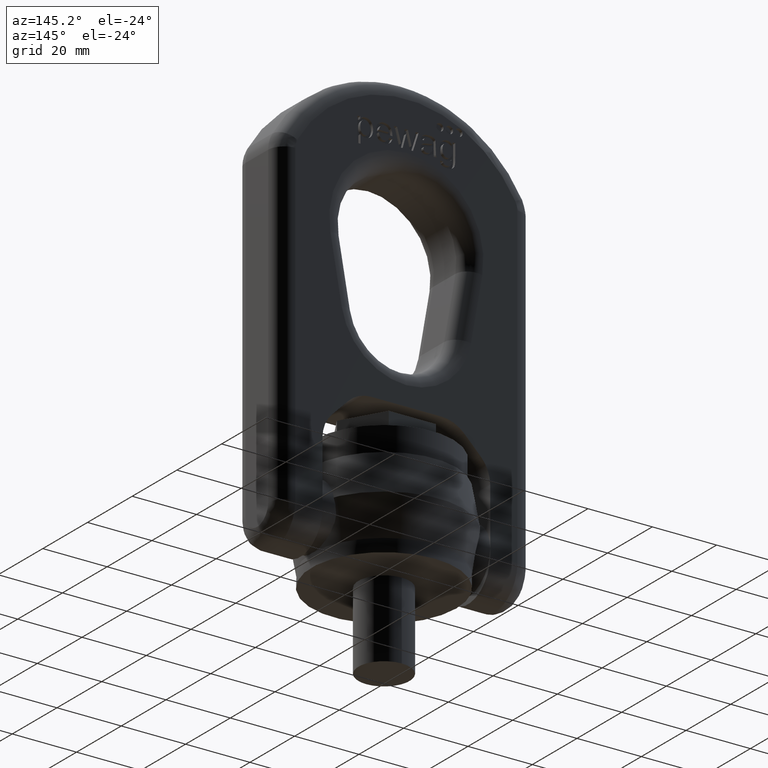
[diagram: clean part render]
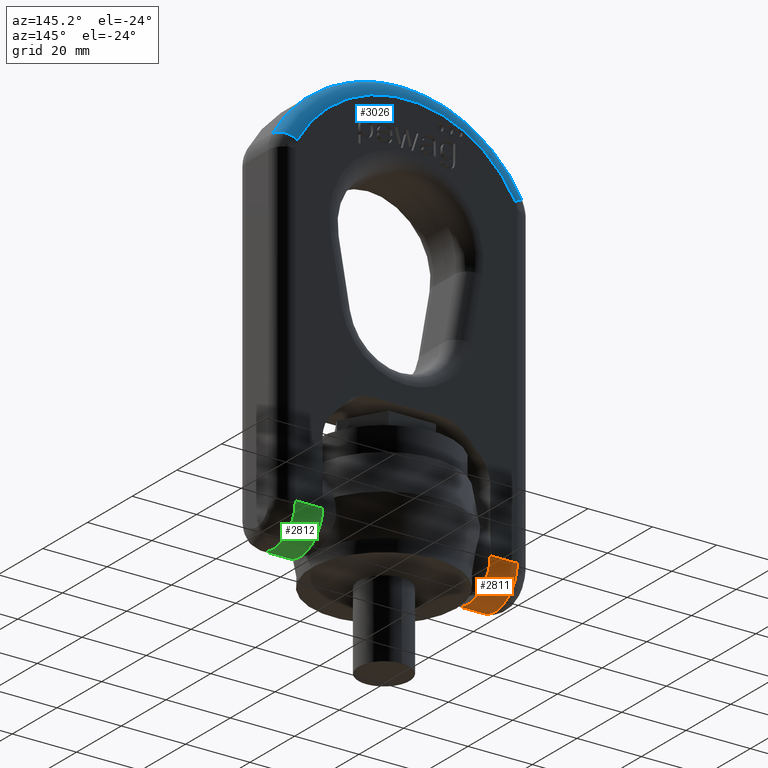
[diagram: same view with three faces highlighted in distinct colors, each labeled with its STEP entity id]
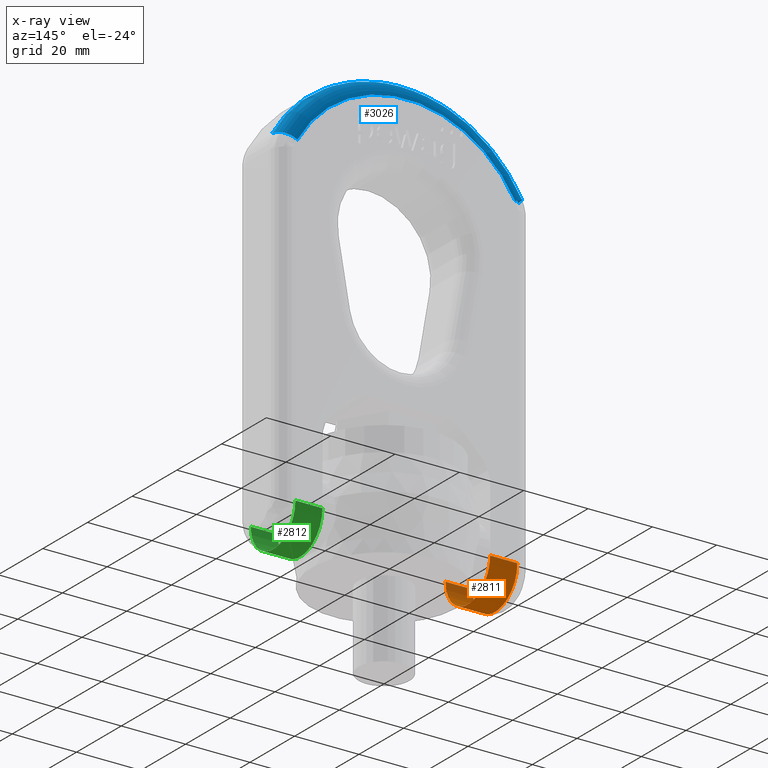
[diagram: x-ray of the same camera — body ghosted, the three highlighted faces saturated]
A machine part, auxiliary view with three faces highlighted in distinct colors.
The next image is the same camera in x-ray (body ghosted, the three faces saturated) — at least one of them is partly hidden behind the body in this view.
Their STEP definitions:

[orange] entity #2811 — the highlighted cylindrical surface (partial cylindrical patch) has radius 10 mm, axis along (-1, 0, 0).
#1770=LINE('',#7054,#2078);
#1771=LINE('',#7059,#2079);
#2078=VECTOR('',#6179,1.);
#2079=VECTOR('',#6182,1.);
#2453=FACE_OUTER_BOUND('',#3171,.T.);
#2811=ADVANCED_FACE('',(#2453),#3043,.T.);
#3043=CYLINDRICAL_SURFACE('',#5866,9.99999999999995);
#3171=EDGE_LOOP('',(#3529,#3530,#3531,#3532));
#3529=ORIENTED_EDGE('',*,*,#5169,.F.);
#3530=ORIENTED_EDGE('',*,*,#5170,.T.);
#3531=ORIENTED_EDGE('',*,*,#5171,.F.);
#3532=ORIENTED_EDGE('',*,*,#5172,.T.);
#4737=VERTEX_POINT('',#7055);
#4738=VERTEX_POINT('',#7056);
#4739=VERTEX_POINT('',#7058);
#4740=VERTEX_POINT('',#7060);
#5169=EDGE_CURVE('',#4737,#4738,#1770,.T.);
#5170=EDGE_CURVE('',#4737,#4739,#5760,.T.);
#5171=EDGE_CURVE('',#4740,#4739,#1771,.T.);
#5172=EDGE_CURVE('',#4740,#4738,#5761,.T.);
#5760=CIRCLE('',#5864,9.99999999999995);
#5761=CIRCLE('',#5865,9.99999999999995);
#5864=AXIS2_PLACEMENT_3D('',#7057,#6180,#6181);
#5865=AXIS2_PLACEMENT_3D('',#7061,#6183,#6184);
#5866=AXIS2_PLACEMENT_3D('',#7062,#6185,#6186);
#6179=DIRECTION('',(1.,0.,-1.14184330064296E-15));
#6180=DIRECTION('',(1.,0.,-1.87537673078574E-16));
#6181=DIRECTION('',(0.,0.,-1.));
#6182=DIRECTION('',(-1.,2.34291072916505E-15,1.14184330064296E-15));
#6183=DIRECTION('',(-1.,0.,3.85494105772624E-16));
#6184=DIRECTION('',(-3.46944695195363E-16,0.,-1.));
#6185=DIRECTION('',(-1.,1.17478108816151E-15,1.14184330064296E-15));
#6186=DIRECTION('',(-1.38777878078145E-15,-1.,0.));
#7054=CARTESIAN_POINT('',(39.5,-10.,12.));
#7055=CARTESIAN_POINT('',(-34.5,-10.,12.));
#7056=CARTESIAN_POINT('',(-26.07,-9.99999999999992,12.));
#7057=CARTESIAN_POINT('',(-34.5,4.00962666725779E-14,12.));
#7058=CARTESIAN_POINT('',(-34.5,10.0000000000001,12.));
#7059=CARTESIAN_POINT('',(39.5,9.99999999999991,12.));
#7060=CARTESIAN_POINT('',(-26.07,10.0000000000001,12.));
#7061=CARTESIAN_POINT('',(-26.07,3.01928620993763E-14,12.));
#7062=CARTESIAN_POINT('',(39.5,-4.68375338513738E-14,12.));

[blue] entity #3026 — the highlighted toroidal blend (fillet) surface has major radius 38.705 mm and minor (blend) radius 5 mm.
#202=TOROIDAL_SURFACE('',#6041,38.705,5.);
#2651=FACE_OUTER_BOUND('',#3419,.T.);
#3026=ADVANCED_FACE('',(#2651),#202,.T.);
#3419=EDGE_LOOP('',(#4641,#4642,#4643,#4644));
#4641=ORIENTED_EDGE('',*,*,#5734,.T.);
#4642=ORIENTED_EDGE('',*,*,#5369,.F.);
#4643=ORIENTED_EDGE('',*,*,#5736,.F.);
#4644=ORIENTED_EDGE('',*,*,#5280,.F.);
#4831=VERTEX_POINT('',#7404);
#4841=VERTEX_POINT('',#7426);
#4928=VERTEX_POINT('',#7762);
#4929=VERTEX_POINT('',#7764);
#5280=EDGE_CURVE('',#4841,#4831,#5783,.T.);
#5369=EDGE_CURVE('',#4928,#4929,#5791,.T.);
#5734=EDGE_CURVE('',#4841,#4929,#5812,.T.);
#5736=EDGE_CURVE('',#4831,#4928,#5814,.T.);
#5783=CIRCLE('',#5890,38.705);
#5791=CIRCLE('',#5904,43.705);
#5812=CIRCLE('',#6037,5.);
#5814=CIRCLE('',#6040,5.);
#5890=AXIS2_PLACEMENT_3D('',#7427,#6285,#6286);
#5904=AXIS2_PLACEMENT_3D('',#7763,#6360,#6361);
#6037=AXIS2_PLACEMENT_3D('',#9754,#6882,#6883);
#6040=AXIS2_PLACEMENT_3D('',#9773,#6888,#6889);
#6041=AXIS2_PLACEMENT_3D('',#9774,#6890,#6891);
#6285=DIRECTION('',(2.34291072916505E-15,1.,0.));
#6286=DIRECTION('',(-1.,2.33059348277468E-15,0.));
#6360=DIRECTION('',(-2.34291072916505E-15,-1.,0.));
#6361=DIRECTION('',(-1.,2.34180723218469E-15,0.));
#6882=DIRECTION('',(0.483686968104757,-1.34250102175259E-15,0.875241062156951));
#6883=DIRECTION('',(0.875241062156951,0.,-0.483686968104757));
#6888=DIRECTION('',(0.483686968104757,-1.34250102175259E-15,-0.875241062156951));
#6889=DIRECTION('',(-0.875241062156951,0.,-0.483686968104757));
#6890=DIRECTION('',(2.34291072916505E-15,1.,0.));
#6891=DIRECTION('',(-1.,2.34180723218469E-15,0.));
#7404=CARTESIAN_POINT('',(33.8762053107848,9.99999999999992,113.016104100495));
#7426=CARTESIAN_POINT('',(-33.8762053107847,10.0000000000001,113.016104100495));
#7427=CARTESIAN_POINT('',(1.17145536458252E-14,10.,94.295));
#7762=CARTESIAN_POINT('',(38.2524106215695,4.9999999999999,115.434538941018));
#7763=CARTESIAN_POINT('',(0.,4.99999999999999,94.295));
#7764=CARTESIAN_POINT('',(-38.2524106215695,5.00000000000008,115.434538941018));
#9754=CARTESIAN_POINT('',(-33.8762053107847,5.00000000000008,113.016104100495));
#9773=CARTESIAN_POINT('',(33.8762053107847,4.99999999999992,113.016104100495));
#9774=CARTESIAN_POINT('',(0.,5.,94.295));

[green] entity #2812 — the highlighted cylindrical surface (partial cylindrical patch) has radius 10 mm, axis along (-1, 0, 0).
#1772=LINE('',#7063,#2080);
#1773=LINE('',#7067,#2081);
#2080=VECTOR('',#6187,1.);
#2081=VECTOR('',#6190,1.);
#2454=FACE_OUTER_BOUND('',#3172,.T.);
#2812=ADVANCED_FACE('',(#2454),#3044,.T.);
#3044=CYLINDRICAL_SURFACE('',#5868,9.99999999999995);
#3172=EDGE_LOOP('',(#3533,#3534,#3535,#3536));
#3533=ORIENTED_EDGE('',*,*,#5173,.F.);
#3534=ORIENTED_EDGE('',*,*,#5174,.T.);
#3535=ORIENTED_EDGE('',*,*,#5175,.F.);
#3536=ORIENTED_EDGE('',*,*,#5168,.T.);
#4734=VERTEX_POINT('',#7047);
#4736=VERTEX_POINT('',#7051);
#4741=VERTEX_POINT('',#7064);
#4742=VERTEX_POINT('',#7066);
#5168=EDGE_CURVE('',#4734,#4736,#5759,.T.);
#5173=EDGE_CURVE('',#4741,#4736,#1772,.T.);
#5174=EDGE_CURVE('',#4741,#4742,#5762,.T.);
#5175=EDGE_CURVE('',#4734,#4742,#1773,.T.);
#5759=CIRCLE('',#5862,9.99999999999995);
#5762=CIRCLE('',#5867,9.99999999999995);
#5862=AXIS2_PLACEMENT_3D('',#7052,#6175,#6176);
#5867=AXIS2_PLACEMENT_3D('',#7065,#6188,#6189);
#5868=AXIS2_PLACEMENT_3D('',#7068,#6191,#6192);
#6175=DIRECTION('',(1.,0.,3.85494105772624E-16));
#6176=DIRECTION('',(-3.46944695195363E-16,0.,1.));
#6187=DIRECTION('',(-1.,2.34291072916505E-15,1.14184330064296E-15));
#6188=DIRECTION('',(-1.,0.,-1.87537673078574E-16));
#6189=DIRECTION('',(0.,0.,1.));
#6190=DIRECTION('',(1.,0.,-1.14184330064296E-15));
#6191=DIRECTION('',(-1.,1.17478108816151E-15,1.14184330064296E-15));
#6192=DIRECTION('',(-1.38777878078145E-15,-1.,0.));
#7047=CARTESIAN_POINT('',(26.07,-9.99999999999998,12.));
#7051=CARTESIAN_POINT('',(26.07,9.99999999999994,12.));
#7052=CARTESIAN_POINT('',(26.07,-3.10602238373647E-14,12.));
#7063=CARTESIAN_POINT('',(39.5,9.99999999999991,12.));
#7064=CARTESIAN_POINT('',(34.5,9.99999999999992,12.));
#7065=CARTESIAN_POINT('',(34.5,-4.09636284105662E-14,12.));
#7066=CARTESIAN_POINT('',(34.5,-10.,12.));
#7067=CARTESIAN_POINT('',(39.5,-10.,12.));
#7068=CARTESIAN_POINT('',(39.5,-4.68375338513738E-14,12.));